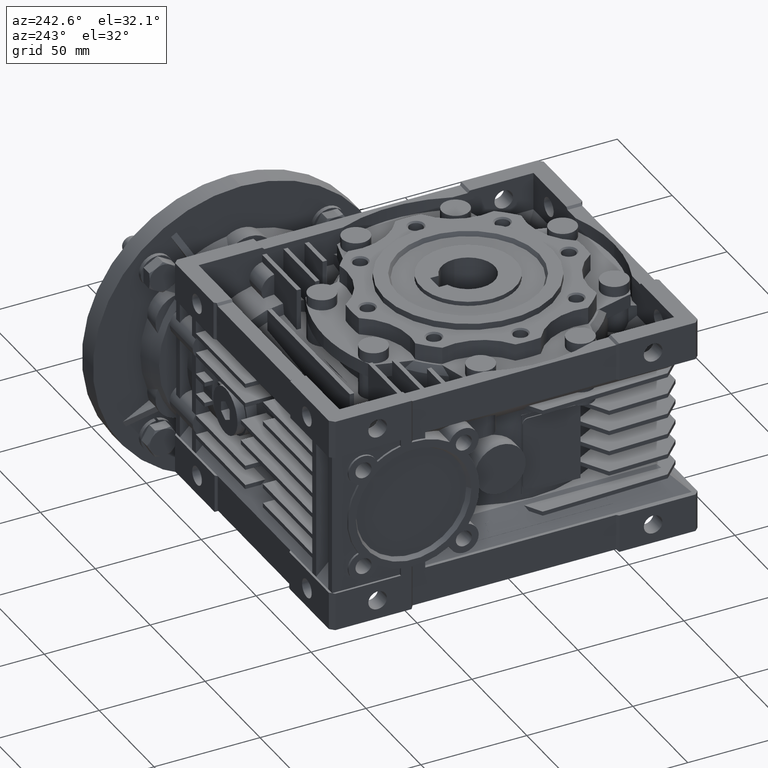
[diagram: clean part render]
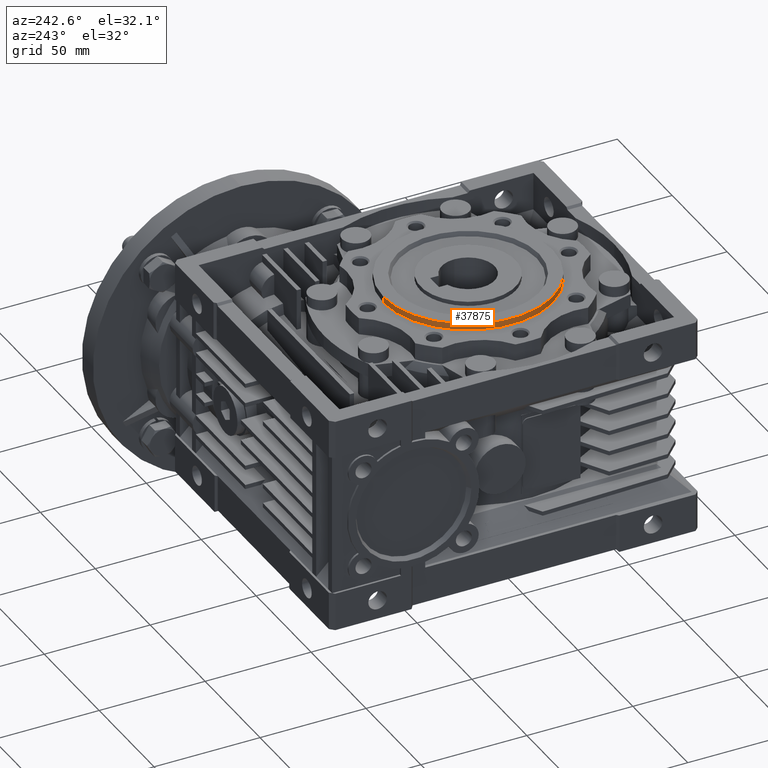
[diagram: same view with one face highlighted and labeled with its STEP entity id]
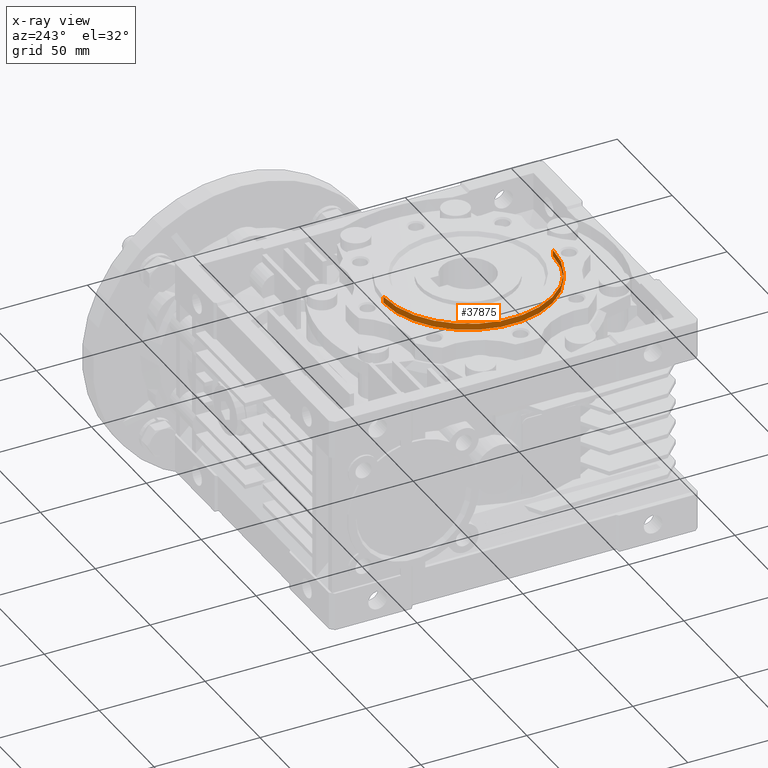
[diagram: x-ray of the same camera — body ghosted, the highlighted face saturated]
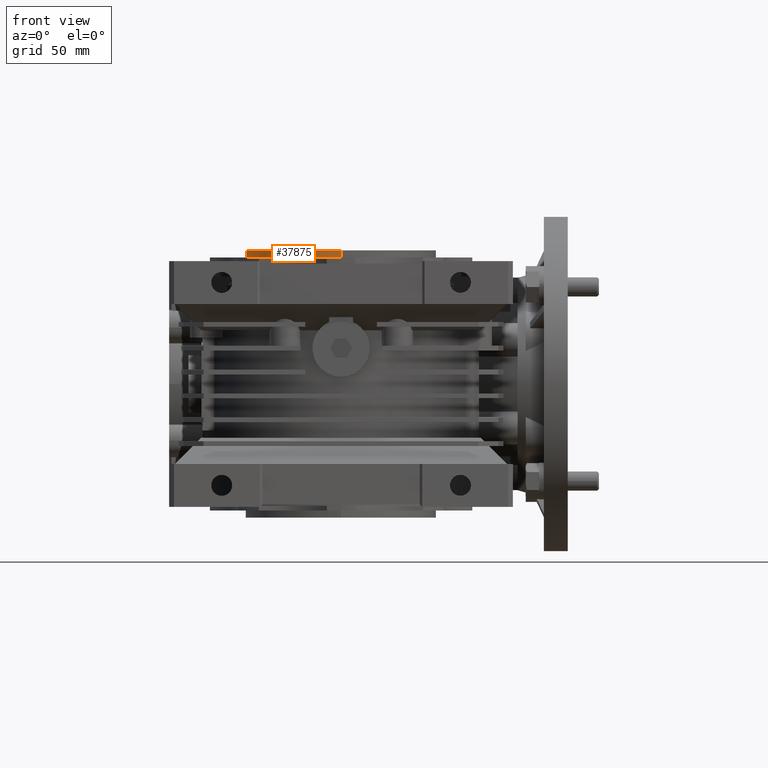
[diagram: same view with one face highlighted and labeled with its STEP entity id]
A machine part, auxiliary view. The second image highlights one B-rep face of the part: STEP entity #37875.
The next image is the same camera in x-ray: the body ghosted, the highlighted face saturated — about 0% of this face is hidden behind the body in this view.
A second angle (front view) of the same face is appended — the face is thin or edge-on in the first view.
In plain terms, the highlighted cylindrical surface (partial cylindrical patch) has radius 40 mm, axis along (0, 0, 1).
Its self-contained STEP definition (entity closure, byte-faithful):
#1867 = CARTESIAN_POINT ( 'NONE',  ( -4.898587196589413026E-15, -40.00000000000000000, 56.00000000000000000 ) ) ;
#2568 = EDGE_CURVE ( 'NONE', #12716, #5229, #30451, .T. ) ;
#4137 = CYLINDRICAL_SURFACE ( 'NONE', #24503, 40.00000000000000000 ) ;
#5229 = VERTEX_POINT ( 'NONE', #28245 ) ;
#6426 = DIRECTION ( 'NONE',  ( 0.000000000000000000, 0.000000000000000000, 1.000000000000000000 ) ) ;
#6922 = CARTESIAN_POINT ( 'NONE',  ( 0.000000000000000000, 0.000000000000000000, 53.00000000000000000 ) ) ;
#7739 = CARTESIAN_POINT ( 'NONE',  ( 0.000000000000000000, 40.00000000000000000, 53.00000000000000000 ) ) ;
#8409 = DIRECTION ( 'NONE',  ( 0.000000000000000000, 1.000000000000000000, 0.000000000000000000 ) ) ;
#8818 = CIRCLE ( 'NONE', #28007, 40.00000000000000000 ) ;
#8894 = EDGE_LOOP ( 'NONE', ( #17110, #36948, #42729, #26660 ) ) ;
#10410 = EDGE_CURVE ( 'NONE', #28004, #5229, #8818, .T. ) ;
#11002 = CARTESIAN_POINT ( 'NONE',  ( 0.000000000000000000, 0.000000000000000000, -56.00000000000000000 ) ) ;
#12119 = DIRECTION ( 'NONE',  ( 0.000000000000000000, 1.000000000000000000, 0.000000000000000000 ) ) ;
#12553 = LINE ( 'NONE', #42456, #36745 ) ;
#12716 = VERTEX_POINT ( 'NONE', #7739 ) ;
#14289 = EDGE_CURVE ( 'NONE', #23677, #28004, #12553, .T. ) ;
#15082 = DIRECTION ( 'NONE',  ( 0.000000000000000000, 0.000000000000000000, 1.000000000000000000 ) ) ;
#15497 = CARTESIAN_POINT ( 'NONE',  ( 0.000000000000000000, 0.000000000000000000, 56.00000000000000000 ) ) ;
#17110 = ORIENTED_EDGE ( 'NONE', *, *, #28344, .T. ) ;
#20587 = FACE_OUTER_BOUND ( 'NONE', #8894, .T. ) ;
#23677 = VERTEX_POINT ( 'NONE', #24664 ) ;
#24503 = AXIS2_PLACEMENT_3D ( 'NONE', #11002, #34632, #27504 ) ;
#24664 = CARTESIAN_POINT ( 'NONE',  ( -4.898587196589413026E-15, -40.00000000000000000, 53.00000000000000000 ) ) ;
#25283 = DIRECTION ( 'NONE',  ( 0.000000000000000000, 0.000000000000000000, 1.000000000000000000 ) ) ;
#26660 = ORIENTED_EDGE ( 'NONE', *, *, #2568, .F. ) ;
#27101 = CIRCLE ( 'NONE', #37768, 40.00000000000000000 ) ;
#27504 = DIRECTION ( 'NONE',  ( 0.000000000000000000, 1.000000000000000000, 0.000000000000000000 ) ) ;
#27815 = VECTOR ( 'NONE', #6426, 1000.000000000000000 ) ;
#28004 = VERTEX_POINT ( 'NONE', #1867 ) ;
#28007 = AXIS2_PLACEMENT_3D ( 'NONE', #15497, #42894, #12119 ) ;
#28245 = CARTESIAN_POINT ( 'NONE',  ( 0.000000000000000000, 40.00000000000000000, 56.00000000000000000 ) ) ;
#28344 = EDGE_CURVE ( 'NONE', #12716, #23677, #27101, .T. ) ;
#30451 = LINE ( 'NONE', #37775, #27815 ) ;
#34632 = DIRECTION ( 'NONE',  ( 0.000000000000000000, 0.000000000000000000, 1.000000000000000000 ) ) ;
#36745 = VECTOR ( 'NONE', #25283, 1000.000000000000000 ) ;
#36948 = ORIENTED_EDGE ( 'NONE', *, *, #14289, .T. ) ;
#37768 = AXIS2_PLACEMENT_3D ( 'NONE', #6922, #15082, #8409 ) ;
#37775 = CARTESIAN_POINT ( 'NONE',  ( 0.000000000000000000, 40.00000000000000000, -56.00000000000000000 ) ) ;
#37875 = ADVANCED_FACE ( 'NONE', ( #20587 ), #4137, .T. ) ;
#42456 = CARTESIAN_POINT ( 'NONE',  ( -4.898587196589413026E-15, -40.00000000000000000, -56.00000000000000000 ) ) ;
#42729 = ORIENTED_EDGE ( 'NONE', *, *, #10410, .T. ) ;
#42894 = DIRECTION ( 'NONE',  ( 0.000000000000000000, 0.000000000000000000, -1.000000000000000000 ) ) ;